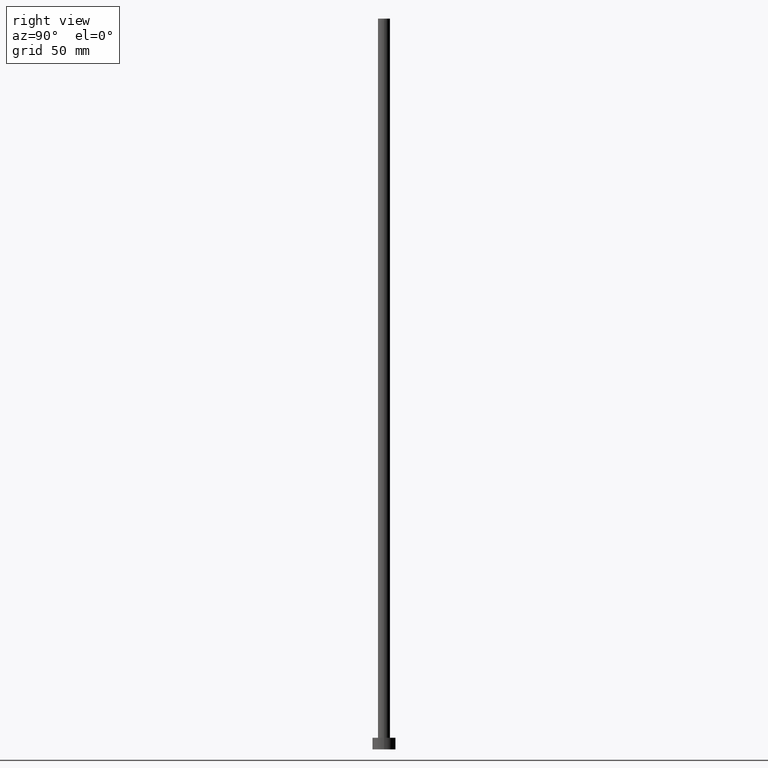
[diagram: clean part render]
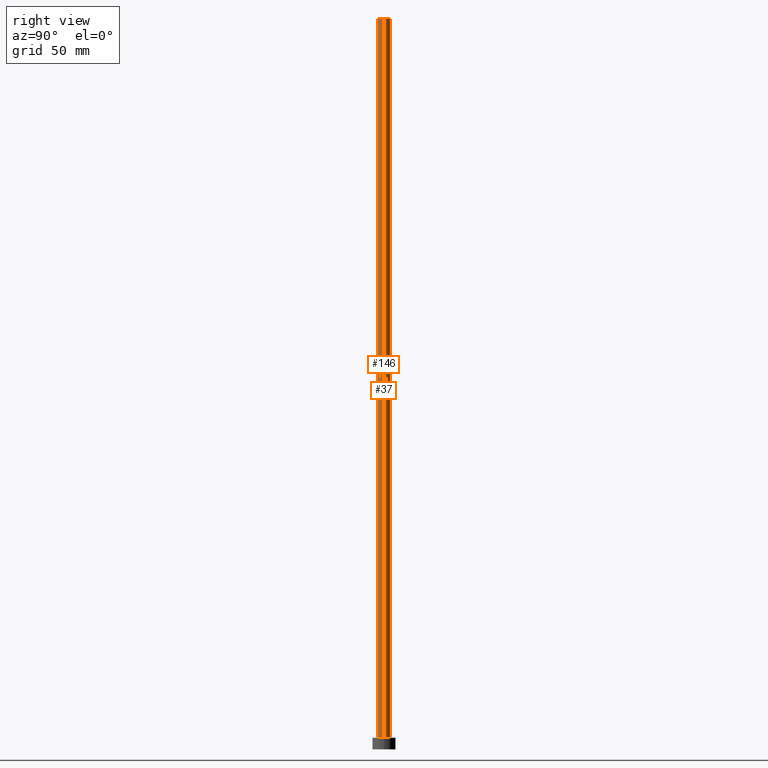
[diagram: same view with one multi-face feature highlighted, each face labeled with its STEP entity id]
A machine part, right view. The highlighted faces form ONE feature: a constant-radius fillet chain: 2 tangent blend faces with common blend radius 2.6 mm. The faces share edges in the B-rep.
Their STEP definitions:
[1] entity #146 (Cylinder):
#3 = LINE ( 'NONE', #205, #9 ) ;
#9 = VECTOR ( 'NONE', #23, 1000.000000000000000 ) ;
#11 = ORIENTED_EDGE ( 'NONE', *, *, #123, .T. ) ;
#13 = VERTEX_POINT ( 'NONE', #238 ) ;
#16 = CARTESIAN_POINT ( 'NONE',  ( -2.600000000000000089, 0.000000000000000000, 315.0000000000000000 ) ) ;
#23 = DIRECTION ( 'NONE',  ( -0.000000000000000000, -0.000000000000000000, -1.000000000000000000 ) ) ;
#36 = CARTESIAN_POINT ( 'NONE',  ( 0.000000000000000000, 0.000000000000000000, 5.000000000000000000 ) ) ;
#49 = VERTEX_POINT ( 'NONE', #220 ) ;
#54 = ORIENTED_EDGE ( 'NONE', *, *, #113, .F. ) ;
#56 = AXIS2_PLACEMENT_3D ( 'NONE', #36, #99, #122 ) ;
#57 = DIRECTION ( 'NONE',  ( -0.000000000000000000, -0.000000000000000000, -1.000000000000000000 ) ) ;
#66 = EDGE_CURVE ( 'NONE', #126, #217, #3, .T. ) ;
#82 = AXIS2_PLACEMENT_3D ( 'NONE', #201, #57, #163 ) ;
#99 = DIRECTION ( 'NONE',  ( 0.000000000000000000, 0.000000000000000000, 1.000000000000000000 ) ) ;
#112 = AXIS2_PLACEMENT_3D ( 'NONE', #133, #209, #144 ) ;
#113 = EDGE_CURVE ( 'NONE', #126, #13, #221, .T. ) ;
#122 = DIRECTION ( 'NONE',  ( 1.000000000000000000, 0.000000000000000000, 0.000000000000000000 ) ) ;
#123 = EDGE_CURVE ( 'NONE', #217, #49, #182, .T. ) ;
#124 = ORIENTED_EDGE ( 'NONE', *, *, #66, .T. ) ;
#126 = VERTEX_POINT ( 'NONE', #16 ) ;
#133 = CARTESIAN_POINT ( 'NONE',  ( 0.000000000000000000, 0.000000000000000000, 315.0000000000000000 ) ) ;
#136 = ORIENTED_EDGE ( 'NONE', *, *, #172, .F. ) ;
#141 = EDGE_LOOP ( 'NONE', ( #136, #54, #124, #11 ) ) ;
#144 = DIRECTION ( 'NONE',  ( 1.000000000000000000, 0.000000000000000000, 0.000000000000000000 ) ) ;
#146 = ADVANCED_FACE ( 'NONE', ( #214 ), #178, .T. ) ;
#152 = CARTESIAN_POINT ( 'NONE',  ( -2.600000000000000089, 0.000000000000000000, 5.000000000000000000 ) ) ;
#163 = DIRECTION ( 'NONE',  ( -1.000000000000000000, 0.000000000000000000, 0.000000000000000000 ) ) ;
#172 = EDGE_CURVE ( 'NONE', #13, #49, #177, .T. ) ;
#177 = LINE ( 'NONE', #246, #227 ) ;
#178 = CYLINDRICAL_SURFACE ( 'NONE', #82, 2.600000000000000089 ) ;
#182 = CIRCLE ( 'NONE', #56, 2.600000000000000089 ) ;
#201 = CARTESIAN_POINT ( 'NONE',  ( 0.000000000000000000, 0.000000000000000000, 315.0000000000000000 ) ) ;
#205 = CARTESIAN_POINT ( 'NONE',  ( -2.600000000000000089, 0.000000000000000000, 315.0000000000000000 ) ) ;
#209 = DIRECTION ( 'NONE',  ( 0.000000000000000000, 0.000000000000000000, 1.000000000000000000 ) ) ;
#214 = FACE_OUTER_BOUND ( 'NONE', #141, .T. ) ;
#217 = VERTEX_POINT ( 'NONE', #152 ) ;
#220 = CARTESIAN_POINT ( 'NONE',  ( 2.600000000000000089, 3.184081677783118191E-16, 5.000000000000000000 ) ) ;
#221 = CIRCLE ( 'NONE', #112, 2.600000000000000089 ) ;
#227 = VECTOR ( 'NONE', #229, 1000.000000000000000 ) ;
#229 = DIRECTION ( 'NONE',  ( -0.000000000000000000, -0.000000000000000000, -1.000000000000000000 ) ) ;
#238 = CARTESIAN_POINT ( 'NONE',  ( 2.600000000000000089, 3.184081677783118191E-16, 315.0000000000000000 ) ) ;
#246 = CARTESIAN_POINT ( 'NONE',  ( 2.600000000000000089, 3.184081677783118191E-16, 315.0000000000000000 ) ) ;
[2] entity #37 (Cylinder):
#3 = LINE ( 'NONE', #205, #9 ) ;
#9 = VECTOR ( 'NONE', #23, 1000.000000000000000 ) ;
#10 = ORIENTED_EDGE ( 'NONE', *, *, #120, .T. ) ;
#13 = VERTEX_POINT ( 'NONE', #238 ) ;
#15 = ORIENTED_EDGE ( 'NONE', *, *, #172, .T. ) ;
#16 = CARTESIAN_POINT ( 'NONE',  ( -2.600000000000000089, 0.000000000000000000, 315.0000000000000000 ) ) ;
#23 = DIRECTION ( 'NONE',  ( -0.000000000000000000, -0.000000000000000000, -1.000000000000000000 ) ) ;
#24 = CARTESIAN_POINT ( 'NONE',  ( 0.000000000000000000, 0.000000000000000000, 315.0000000000000000 ) ) ;
#28 = AXIS2_PLACEMENT_3D ( 'NONE', #215, #97, #119 ) ;
#37 = ADVANCED_FACE ( 'NONE', ( #91 ), #60, .T. ) ;
#46 = DIRECTION ( 'NONE',  ( -0.000000000000000000, -0.000000000000000000, -1.000000000000000000 ) ) ;
#49 = VERTEX_POINT ( 'NONE', #220 ) ;
#60 = CYLINDRICAL_SURFACE ( 'NONE', #68, 2.600000000000000089 ) ;
#63 = CARTESIAN_POINT ( 'NONE',  ( 0.000000000000000000, 0.000000000000000000, 315.0000000000000000 ) ) ;
#66 = EDGE_CURVE ( 'NONE', #126, #217, #3, .T. ) ;
#68 = AXIS2_PLACEMENT_3D ( 'NONE', #63, #46, #165 ) ;
#83 = DIRECTION ( 'NONE',  ( 1.000000000000000000, 0.000000000000000000, 0.000000000000000000 ) ) ;
#86 = EDGE_LOOP ( 'NONE', ( #179, #15, #10, #161 ) ) ;
#91 = FACE_OUTER_BOUND ( 'NONE', #86, .T. ) ;
#97 = DIRECTION ( 'NONE',  ( 0.000000000000000000, 0.000000000000000000, 1.000000000000000000 ) ) ;
#119 = DIRECTION ( 'NONE',  ( 1.000000000000000000, 0.000000000000000000, 0.000000000000000000 ) ) ;
#120 = EDGE_CURVE ( 'NONE', #49, #217, #150, .T. ) ;
#126 = VERTEX_POINT ( 'NONE', #16 ) ;
#150 = CIRCLE ( 'NONE', #28, 2.600000000000000089 ) ;
#152 = CARTESIAN_POINT ( 'NONE',  ( -2.600000000000000089, 0.000000000000000000, 5.000000000000000000 ) ) ;
#161 = ORIENTED_EDGE ( 'NONE', *, *, #66, .F. ) ;
#165 = DIRECTION ( 'NONE',  ( -1.000000000000000000, 0.000000000000000000, 0.000000000000000000 ) ) ;
#166 = DIRECTION ( 'NONE',  ( 0.000000000000000000, 0.000000000000000000, 1.000000000000000000 ) ) ;
#172 = EDGE_CURVE ( 'NONE', #13, #49, #177, .T. ) ;
#177 = LINE ( 'NONE', #246, #227 ) ;
#179 = ORIENTED_EDGE ( 'NONE', *, *, #252, .F. ) ;
#181 = AXIS2_PLACEMENT_3D ( 'NONE', #24, #166, #83 ) ;
#191 = CIRCLE ( 'NONE', #181, 2.600000000000000089 ) ;
#205 = CARTESIAN_POINT ( 'NONE',  ( -2.600000000000000089, 0.000000000000000000, 315.0000000000000000 ) ) ;
#215 = CARTESIAN_POINT ( 'NONE',  ( 0.000000000000000000, 0.000000000000000000, 5.000000000000000000 ) ) ;
#217 = VERTEX_POINT ( 'NONE', #152 ) ;
#220 = CARTESIAN_POINT ( 'NONE',  ( 2.600000000000000089, 3.184081677783118191E-16, 5.000000000000000000 ) ) ;
#227 = VECTOR ( 'NONE', #229, 1000.000000000000000 ) ;
#229 = DIRECTION ( 'NONE',  ( -0.000000000000000000, -0.000000000000000000, -1.000000000000000000 ) ) ;
#238 = CARTESIAN_POINT ( 'NONE',  ( 2.600000000000000089, 3.184081677783118191E-16, 315.0000000000000000 ) ) ;
#246 = CARTESIAN_POINT ( 'NONE',  ( 2.600000000000000089, 3.184081677783118191E-16, 315.0000000000000000 ) ) ;
#252 = EDGE_CURVE ( 'NONE', #13, #126, #191, .T. ) ;